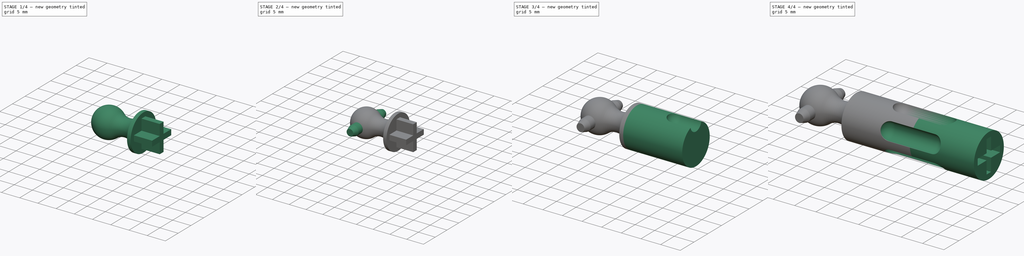
[diagram: build sequence overview — one tinted view per stage of 4, left to right]
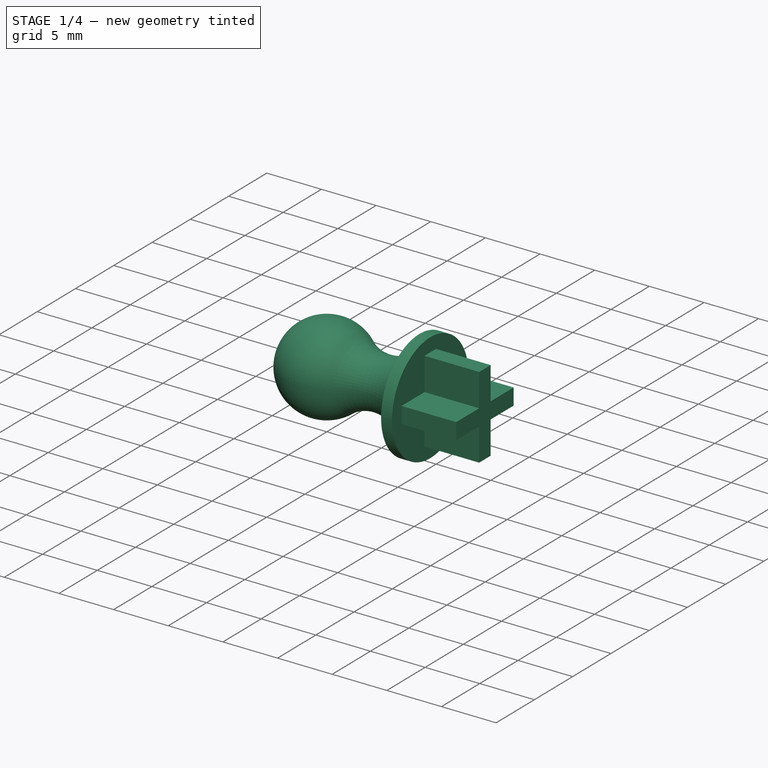
[diagram: stage 1 of 4 — iso view after this stage's code; geometry added in this stage tinted green]
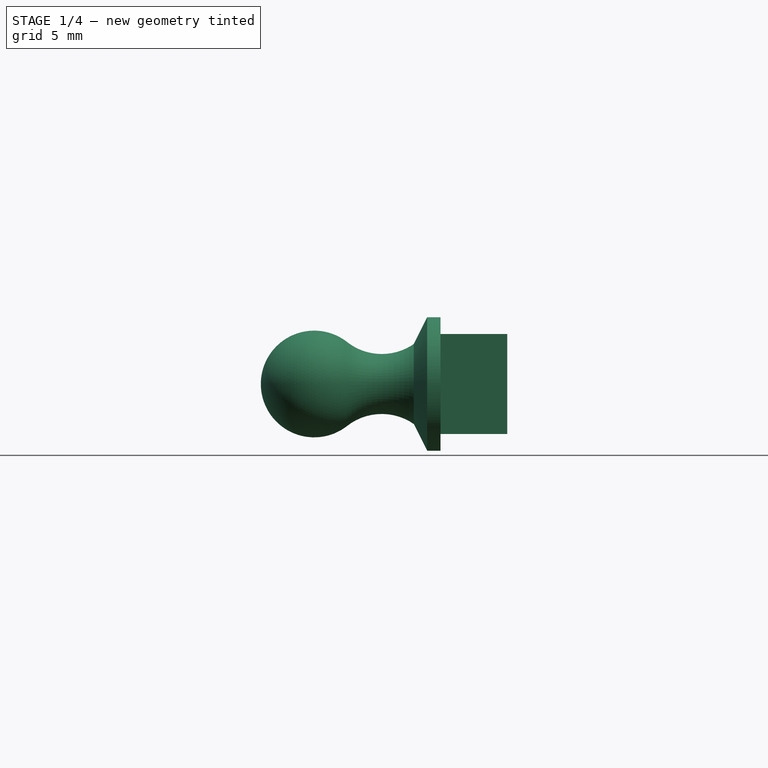
[diagram: stage 1 of 4 — front view after this stage's code; geometry added in this stage tinted green]
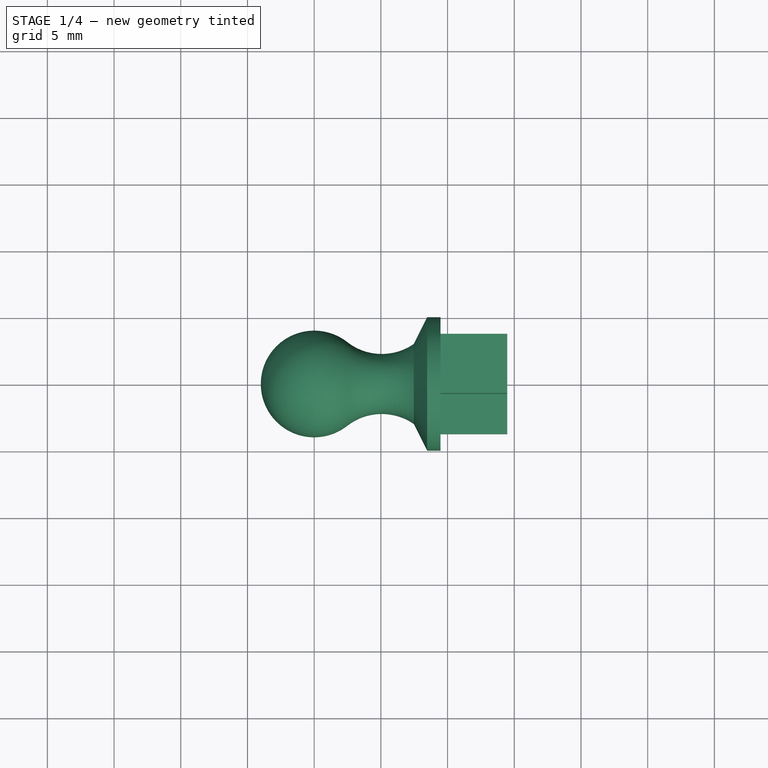
[diagram: stage 1 of 4 — top view after this stage's code; geometry added in this stage tinted green]
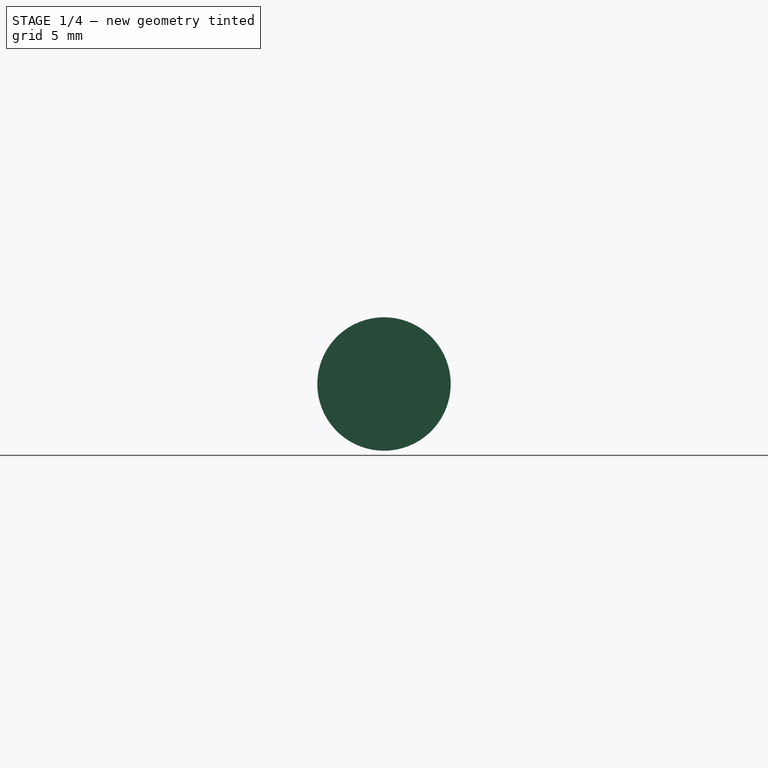
[diagram: stage 1 of 4 — right view after this stage's code; geometry added in this stage tinted green]
FCSTD DOCUMENT  (FreeCAD 2023.131R26244 +5365 (Git))
Label: tpu_drive_shaft
License: All rights reserved
LicenseURL: http://en.wikipedia.org/wiki/All_rights_reserved
objects: Sketcher::SketchObject×7, PartDesign::Pad×4, Part::SubShapeBinder×3, PartDesign::Plane×3, PartDesign::SubShapeBinder×2, PartDesign::Mirrored×2, PartDesign::Body×2, App::Link×1, PartDesign::Revolution×1, PartDesign::Groove×1, PartDesign::PolarPattern×1, PartDesign::Chamfer×1
note: 54 computed .brp shape members not serialized (recipe doc carries the construction recipe); baked Part::Feature solids carry a one-line shape summary decoded from their .brp
EXTERNAL_REF file=drive_components.FCStd obj=Body007

FEATURE [App::Link] Link  label="original_ref"
  AutoLinkLabel = true
  AutoPlacement = true
  LinkedObject = -> <external drive_components.FCStd>#Body007
  SyncGroupVisibility = false
  TreeRank = 1
  _LinkVersion = 1
FEATURE [Part::SubShapeBinder] Import  label="Import(PolarPattern)"
  BindCopyOnChange = 0
  BindMode = 0
  ClaimChildren = false
  Context = -> Body [Import.]
  EdgeTolerance = 1e-06
  FillStyle = 0
  FixShape = 1
  Fuse = false
  InvalidShape = false
  MakeFace = false
  MergeEdges = true
  OffsetFill = false
  OffsetIntersection = false
  OffsetJoinType = 0
  OffsetOpenResult = false
  Outline = false
  PartialLoad = false
  Relative = true
  SplitEdges = false
  Support = -> [Link[PolarPattern.]]
  TightBound = false
  TreeRank = 13
  ValidateShape = false
  _Version = 8
FEATURE [Sketcher::SketchObject] Sketch
  ArcFitTolerance = 1e-06
  AttachmentSupport = -> [XZ_Plane]
  ExternalBSplineMaxDegree = 5
  ExternalBSplineTolerance = 0.0001
  ExternalGeometry = -> [Import]
  FixShape = 1
  FullyConstrained = true
  InternalTolerance = 1e-06
  InvalidShape = false
  MakeInternals = false
  MapMode = 5
  Placement = pos=(0,0,0) rot=(1,0,0;1.5708rad)
  Support = -> [XZ_Plane]
  TreeRank = 12
  ValidateShape = false
  sketch-geometry (6):
    g0: ArcOfCircle CenterX=0 CenterY=0 CenterZ=0 NormalX=0 NormalY=0 NormalZ=1 AngleXU=0 Radius=4 StartAngle=0.905859 EndAngle=3.14159
    g1: ArcOfCircle CenterX=5.06827 CenterY=6.46425 CenterZ=0 NormalX=0 NormalY=0 NormalZ=1 AngleXU=0 Radius=4.21425 StartAngle=4.04745 EndAngle=5.31821
    g2: LineSegment StartX=7.46804 StartY=3 StartZ=0 EndX=8.46804 EndY=5 EndZ=0
    g3: LineSegment StartX=9.46804 StartY=0 StartZ=0 EndX=-4 EndY=0 EndZ=0
    g4: LineSegment StartX=8.46804 StartY=5 StartZ=0 EndX=9.46804 EndY=5 EndZ=0
    g5: LineSegment StartX=9.46804 StartY=5 StartZ=0 EndX=9.46804 EndY=0 EndZ=0
  constraints (18):
    c: Coincident(g0,g-1)
    c: PointOnObject(g0,g-1)
    c: Tangent(g1,g0) = 1.5708
    c: Equal(g0,g-3)
    c: Equal(g-4,g1)
    c: Vertical(g-4,g0)
    c: PointOnObject(g3,g-1)
    c: Coincident(g3,g0)
    c: Vertical(g-5,g1)
    c: Coincident(g2,g1)
    c: DistanceY(g3,g2) = 5
    c: Coincident(g4,g2)
    c: Horizontal(g4)
    c: Coincident(g5,g4)
    c: Coincident(g5,g3)
    c: Vertical(g5)
    c: DistanceX(g4,g4) = 1
    c: DistanceX(g1,g4) = 2
FEATURE [PartDesign::Revolution] Revolution
  AddSubType = 0
  Angle = 360
  Axis = (1,0,0)
  Base = (0,0,0)
  ClaimChildren = false
  Fit = 0
  FitJoin = 0
  FixShape = 1
  InnerFit = 0
  InnerFitJoin = 0
  InvalidShape = false
  Linearize = true
  NewSolid = false
  Profile = -> Sketch
  ReferenceAxis = -> Sketch [H_Axis]
  Refine = true
  Suppress = false
  TreeRank = 14
  ValidateShape = false
  _ProfileBasedVersion = 1
FEATURE [Sketcher::SketchObject] Sketch001
  ArcFitTolerance = 1e-06
  AttachmentSupport = -> [Revolution]
  ExternalBSplineMaxDegree = 5
  ExternalBSplineTolerance = 0.0001
  FixShape = 1
  FullyConstrained = true
  InternalTolerance = 1e-06
  InvalidShape = false
  MakeInternals = false
  MapMode = 5
  Placement = pos=(9.46804,0,0) rot=(0.57735,0.57735,0.57735;2.0944rad)
  Support = -> [Revolution]
  TreeRank = 15
  ValidateShape = false
  sketch-geometry (12):
    g0: LineSegment StartX=-0.75 StartY=0.75 StartZ=0 EndX=-0.75 EndY=3.75 EndZ=0
    g1: LineSegment StartX=-0.75 StartY=3.75 StartZ=0 EndX=0.75 EndY=3.75 EndZ=0
    g2: LineSegment StartX=0.75 StartY=3.75 StartZ=0 EndX=0.75 EndY=0.75 EndZ=0
    g3: LineSegment StartX=-0.75 StartY=0.75 StartZ=0 EndX=-3.75 EndY=0.75 EndZ=0
    g4: LineSegment StartX=-3.75 StartY=0.75 StartZ=0 EndX=-3.75 EndY=-0.75 EndZ=0
    g5: LineSegment StartX=-3.75 StartY=-0.75 StartZ=0 EndX=-0.75 EndY=-0.75 EndZ=0
    g6: LineSegment StartX=-0.75 StartY=-0.75 StartZ=0 EndX=-0.75 EndY=-3.75 EndZ=0
    g7: LineSegment StartX=-0.75 StartY=-3.75 StartZ=0 EndX=0.75 EndY=-3.75 EndZ=0
    g8: LineSegment StartX=0.75 StartY=-3.75 StartZ=0 EndX=0.75 EndY=-0.75 EndZ=0
    g9: LineSegment StartX=0.75 StartY=-0.75 StartZ=0 EndX=3.75 EndY=-0.75 EndZ=0
    g10: LineSegment StartX=3.75 StartY=-0.75 StartZ=0 EndX=3.75 EndY=0.75 EndZ=0
    g11: LineSegment StartX=3.75 StartY=0.75 StartZ=0 EndX=0.75 EndY=0.75 EndZ=0
  constraints (35):
    c: Vertical(g0)
    c: Coincident(g1,g0)
    c: Horizontal(g1)
    c: Coincident(g2,g1)
    c: Vertical(g2)
    c: Coincident(g3,g0)
    c: Horizontal(g3)
    c: Coincident(g4,g3)
    c: Vertical(g4)
    c: Coincident(g5,g4)
    c: Horizontal(g5)
    c: Coincident(g6,g5)
    c: Vertical(g6)
    c: Coincident(g7,g6)
    c: Horizontal(g7)
    c: Coincident(g8,g7)
    c: Coincident(g9,g8)
    c: Coincident(g10,g9)
    c: Coincident(g11,g10)
    c: Coincident(g11,g2)
    c: Equal(g1,g7)
    c: Equal(g7,g4)
    c: Equal(g4,g10)
    c: Vertical(g10)
    c: Vertical(g8)
    c: Horizontal(g9)
    c: Horizontal(g11)
    c: Equal(g3,g0)
    c: Equal(g0,g2)
    c: Equal(g2,g11)
    c: Equal(g11,g9)
    c: Equal(g9,g8)
    c: Symmetric(g2,g5,g-1)
    c: DistanceX(g1,g1) = 1.5
    c: DistanceY(g2,g2) = 3
FEATURE [PartDesign::Pad] Pad
  AddSubType = 0
  AlongSketchNormal = false
  AutoTaperInnerAngle = true
  BaseFeature = -> Revolution
  CheckUpToFaceLimits = true
  ClaimChildren = false
  Direction = (1,0,0)
  Fit = 0
  FitJoin = 0
  FixShape = 1
  InnerFit = 0
  InnerFitJoin = 0
  InvalidShape = false
  Length = 5
  Length2 = 100
  Linearize = true
  NewSolid = false
  Profile = -> Sketch001
  Refine = true
  Suppress = false
  TaperInnerAngle = 0
  TaperInnerAngleRev = 0
  TreeRank = 16
  Type = 0
  ValidateShape = false
  _ProfileBasedVersion = 1
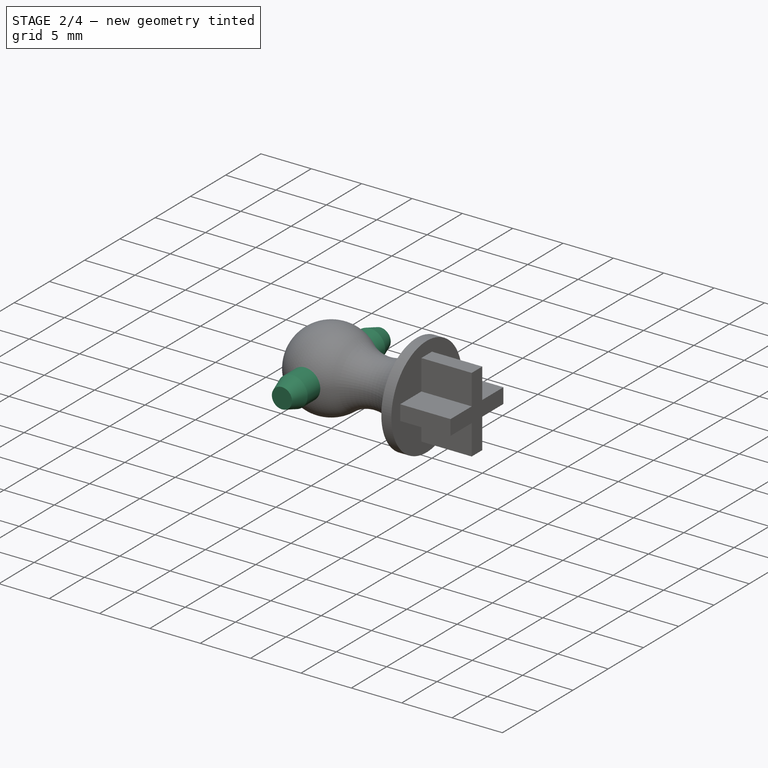
[diagram: stage 2 of 4 — iso view after this stage's code; geometry added in this stage tinted green]
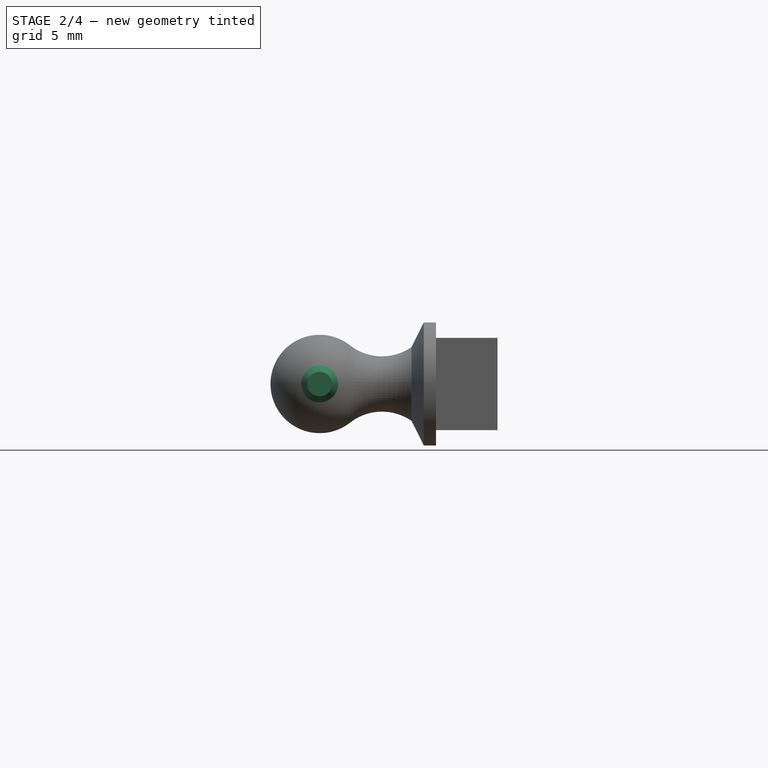
[diagram: stage 2 of 4 — front view after this stage's code; geometry added in this stage tinted green]
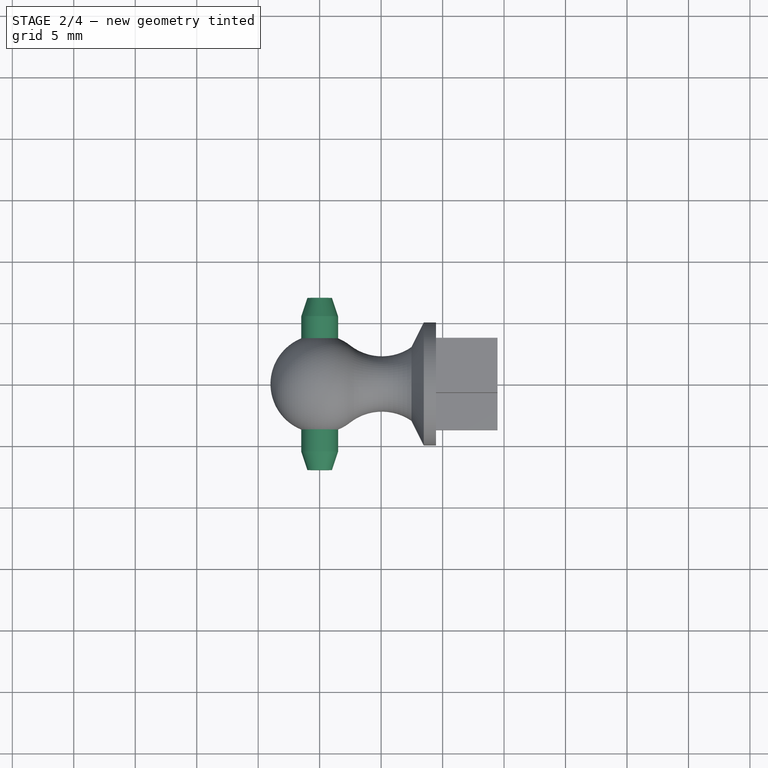
[diagram: stage 2 of 4 — top view after this stage's code; geometry added in this stage tinted green]
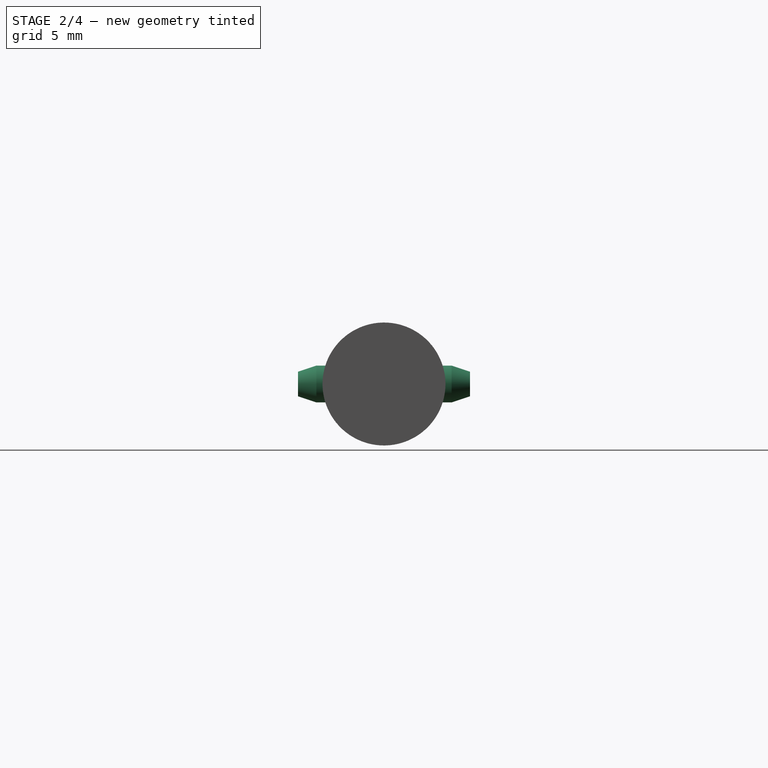
[diagram: stage 2 of 4 — right view after this stage's code; geometry added in this stage tinted green]
FEATURE [Sketcher::SketchObject] Sketch002
  ArcFitTolerance = 1e-06
  AttachmentSupport = -> [XZ_Plane]
  ExternalBSplineMaxDegree = 5
  ExternalBSplineTolerance = 0.0001
  ExternalGeometry = -> [Import]
  FixShape = 1
  FullyConstrained = true
  InternalTolerance = 1e-06
  InvalidShape = false
  MakeInternals = false
  MapMode = 5
  Placement = pos=(0,0,0) rot=(1,0,0;1.5708rad)
  Support = -> [XZ_Plane]
  TreeRank = 17
  ValidateShape = false
  sketch-geometry (1):
    g0: Circle CenterX=0 CenterY=0 CenterZ=0 NormalX=0 NormalY=0 NormalZ=1 AngleXU=0 Radius=1.5
  constraints (2):
    c: Coincident(g0,g-1)
    c: Equal(g0,g-3)
FEATURE [PartDesign::SubShapeBinder] Binder  label="Binder(PolarPattern)"
  BindCopyOnChange = 0
  BindMode = 0
  ClaimChildren = false
  Context = -> Body [Binder.]
  EdgeTolerance = 1e-06
  FillStyle = 0
  FixShape = 1
  Fuse = false
  InvalidShape = false
  MakeFace = true
  MergeEdges = true
  OffsetFill = false
  OffsetIntersection = false
  OffsetJoinType = 0
  OffsetOpenResult = false
  Outline = false
  PartialLoad = false
  Relative = true
  SplitEdges = false
  Support = -> [Link[PolarPattern.Face7]]
  TightBound = false
  TreeRank = 18
  ValidateShape = false
  _Version = 8
FEATURE [PartDesign::Plane] DatumPlane
  AttachmentSupport = -> [Binder]
  FixShape = 1
  InvalidShape = false
  Length = 18.468
  MapMode = 5
  MinimumLength = 10
  MinimumWidth = 10
  Placement = pos=(0,-7,-1.5e-15) rot=(1,0,0;1.5708rad)
  ResizeMode = 0
  Support = -> [Binder]
  TreeRank = 19
  ValidateShape = false
  Width = 20.4901
FEATURE [PartDesign::Pad] Pad001
  AddSubType = 0
  AlongSketchNormal = false
  AutoTaperInnerAngle = true
  BaseFeature = -> Pad
  CheckUpToFaceLimits = true
  ClaimChildren = false
  Direction = (0,-1,2e-16)
  Fit = 0
  FitJoin = 0
  FixShape = 1
  InnerFit = 0
  InnerFitJoin = 0
  InvalidShape = false
  Length = 10
  Length2 = 100
  Linearize = true
  NewSolid = false
  Profile = -> Sketch002
  Refine = true
  Suppress = false
  TaperInnerAngle = 0
  TaperInnerAngleRev = 0
  TreeRank = 20
  Type = 3
  UpToFace = -> DatumPlane
  ValidateShape = false
  _ProfileBasedVersion = 1
FEATURE [PartDesign::Mirrored] Mirrored
  AddSubType = 0
  BaseFeature = -> Pad001
  CopyShape = false
  FixShape = 1
  InvalidShape = false
  MirrorPlane = -> XZ_Plane
  NewSolid = false
  OriginalSubs = -> [Pad001]
  Originals = -> [Pad001]
  ParallelTransform = true
  Refine = true
  SubTransform = true
  Suppress = false
  TreeRank = 21
  ValidateShape = false
  _Version = 3
FEATURE [PartDesign::Body] Body001  label="torque_damper"
  AutoGroupSolids = false
  ClaimAllChildren = false
  ExportMode = 0
  FixShape = 1
  Group = -> [Import001,Sketch003,Sketch004,Import002,DatumPlane001,DatumPlane002,Pad002,Import003,Sketch005,Pad003,Sketch006,Groove,PolarPattern,Mirrored001]
  InvalidShape = false
  Origin = -> Origin001
  Tip = -> Mirrored001
  TreeRank = 31
  ValidateShape = false
  _ExportChildren = -> [Import001,Sketch004,Import002,DatumPlane001,DatumPlane002,Pad002,Import003,Pad003,Groove,PolarPattern,Mirrored001]
  _GroupVersion = 1
FEATURE [PartDesign::Chamfer] Chamfer
  AddSubType = 0
  Angle = 45
  Base = -> Mirrored [Edge11,Edge9]
  BaseFeature = -> Mirrored
  ChamferType = 1
  FixShape = 1
  FlipDirection = false
  InvalidShape = false
  NewSolid = false
  Refine = true
  Size = 1.5
  Size2 = 0.5
  SupportTransform = false
  Suppress = false
  TreeRank = 51
  ValidateShape = false
FEATURE [PartDesign::Body] Body  label="shaft_end"
  AutoGroupSolids = false
  ClaimAllChildren = false
  ExportMode = 0
  FixShape = 1
  Group = -> [Sketch,Import,Revolution,Sketch001,Pad,Sketch002,Binder,DatumPlane,Pad001,Mirrored,Chamfer]
  InvalidShape = false
  Origin = -> Origin
  Tip = -> Chamfer
  TreeRank = 11
  ValidateShape = false
  _ExportChildren = -> [Import,Revolution,Pad,Binder,DatumPlane,Pad001,Mirrored,Chamfer]
  _GroupVersion = 1
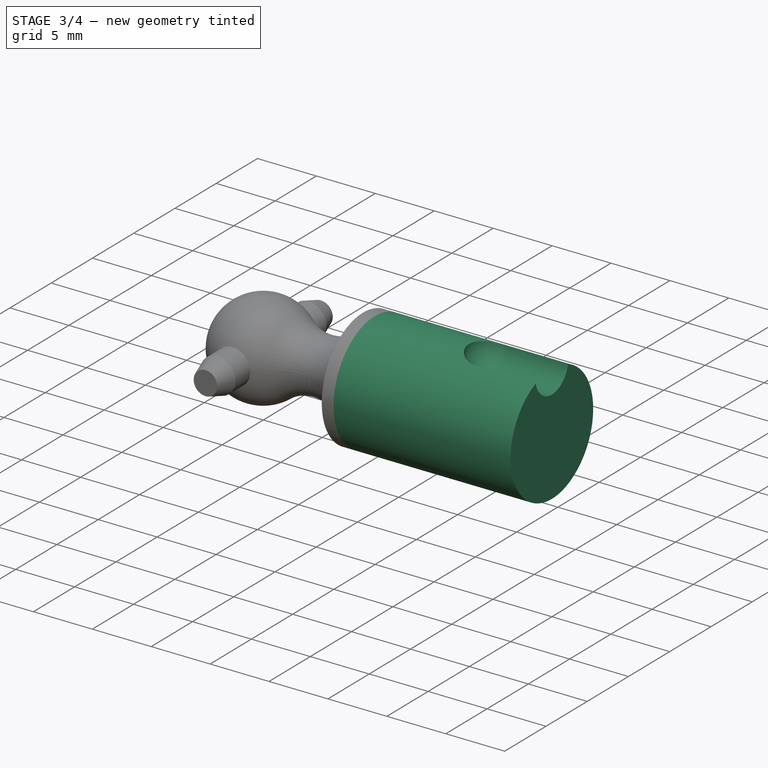
[diagram: stage 3 of 4 — iso view after this stage's code; geometry added in this stage tinted green]
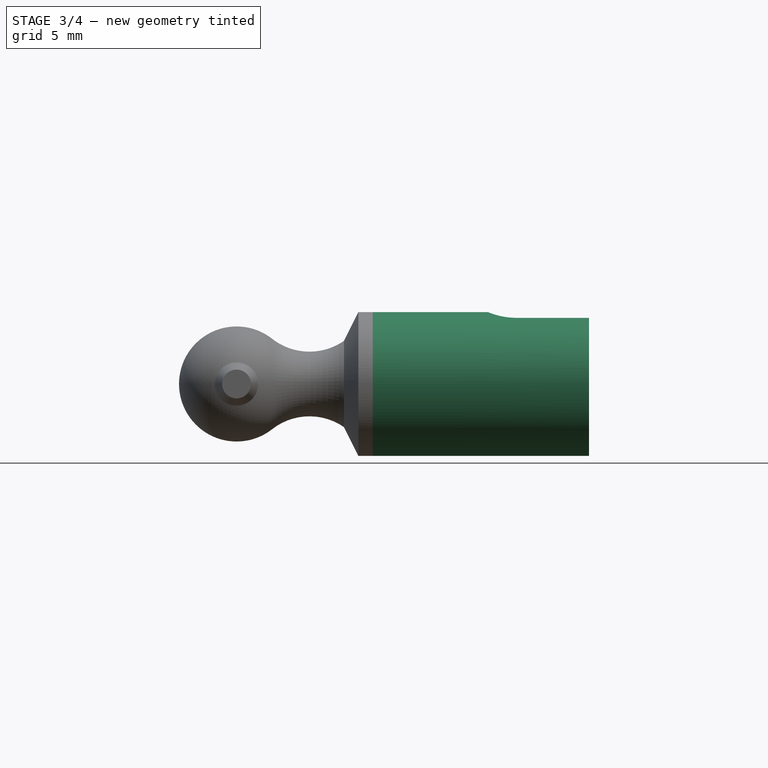
[diagram: stage 3 of 4 — front view after this stage's code; geometry added in this stage tinted green]
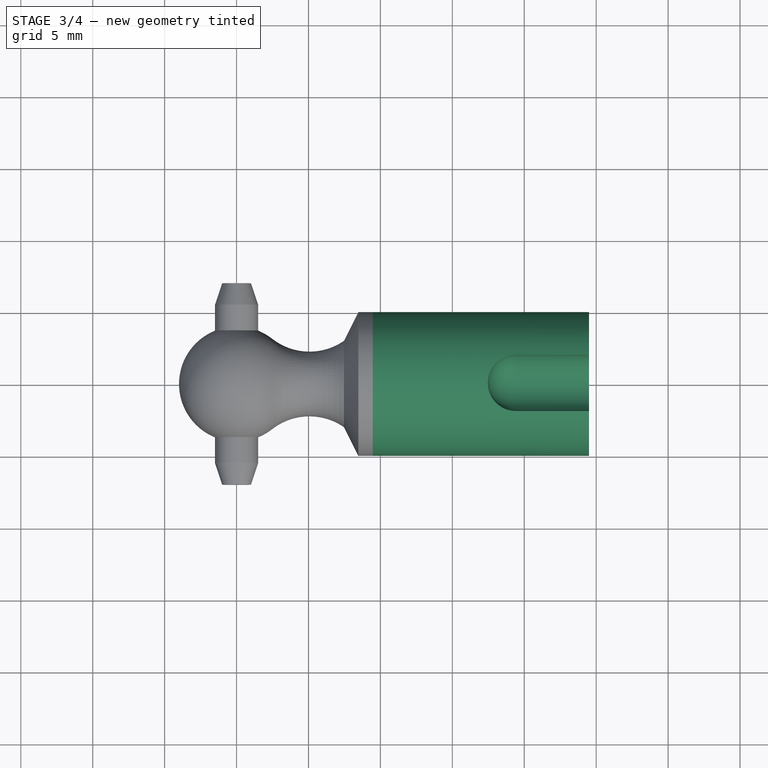
[diagram: stage 3 of 4 — top view after this stage's code; geometry added in this stage tinted green]
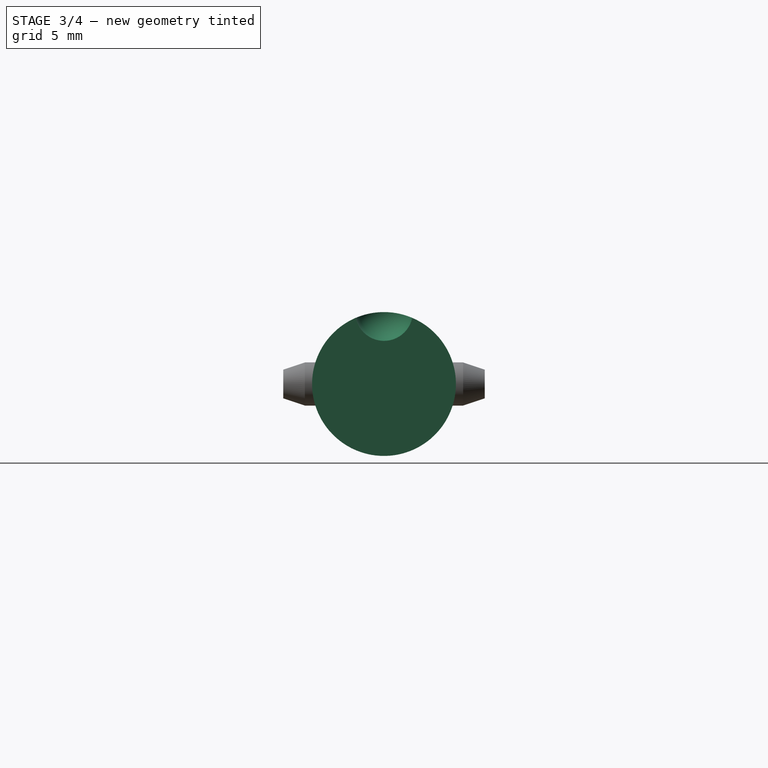
[diagram: stage 3 of 4 — right view after this stage's code; geometry added in this stage tinted green]
FEATURE [Part::SubShapeBinder] Import001  label="Import001(Mirrored)"
  BindCopyOnChange = 0
  BindMode = 0
  ClaimChildren = false
  Context = -> Body001 [Import001.]
  EdgeTolerance = 1e-06
  FillStyle = 0
  FixShape = 1
  Fuse = false
  InvalidShape = false
  MakeFace = false
  MergeEdges = true
  OffsetFill = false
  OffsetIntersection = false
  OffsetJoinType = 0
  OffsetOpenResult = false
  Outline = false
  PartialLoad = false
  Relative = true
  SplitEdges = false
  Support = -> [Body[Mirrored.]]
  TightBound = false
  TreeRank = 32
  ValidateShape = false
  _Version = 8
FEATURE [Sketcher::SketchObject] Sketch003
  ArcFitTolerance = 1e-06
  AttachmentSupport = -> [Import001]
  ExternalBSplineMaxDegree = 5
  ExternalBSplineTolerance = 0.0001
  ExternalGeometry = -> [Import001]
  FixShape = 1
  FullyConstrained = true
  InternalTolerance = 1e-06
  InvalidShape = false
  MakeInternals = false
  MapMode = 5
  Placement = pos=(9.46804,0,0) rot=(0.57735,0.57735,0.57735;2.0944rad)
  Support = -> [Import001]
  TreeRank = 33
  ValidateShape = false
  sketch-geometry (1):
    g0: Circle CenterX=0 CenterY=0 CenterZ=0 NormalX=0 NormalY=0 NormalZ=1 AngleXU=0 Radius=5
  constraints (2):
    c: Coincident(g0,g-3)
    c: Diameter(g0) = 10
FEATURE [Part::SubShapeBinder] Import002  label="Import002(PolarPattern)"
  BindCopyOnChange = 0
  BindMode = 0
  ClaimChildren = false
  Context = -> Body001 [Import002.]
  EdgeTolerance = 1e-06
  FillStyle = 0
  FixShape = 1
  Fuse = false
  InvalidShape = false
  MakeFace = false
  MergeEdges = true
  OffsetFill = false
  OffsetIntersection = false
  OffsetJoinType = 0
  OffsetOpenResult = false
  Outline = false
  PartialLoad = false
  Relative = true
  SplitEdges = false
  Support = -> [Link[PolarPattern.]]
  TightBound = false
  TreeRank = 35
  ValidateShape = false
  _Version = 8
FEATURE [Sketcher::SketchObject] Sketch004
  ArcFitTolerance = 1e-06
  AttachmentSupport = -> [XZ_Plane001]
  ExternalBSplineMaxDegree = 5
  ExternalBSplineTolerance = 0.0001
  ExternalGeometry = -> [Import002]
  FixShape = 1
  FullyConstrained = true
  InternalTolerance = 1e-06
  InvalidShape = false
  MakeInternals = false
  MapMode = 5
  Placement = pos=(0,0,0) rot=(1,0,0;1.5708rad)
  Support = -> [XZ_Plane001]
  TreeRank = 34
  ValidateShape = false
  sketch-geometry (3):
    g0: LineSegment StartX=24.5 StartY=12.0237 StartZ=0 EndX=24.5 EndY=15.0118 EndZ=0
    g1: LineSegment StartX=7.46804 StartY=15.0118 StartZ=0 EndX=41.532 EndY=15.0118 EndZ=0
    g2: LineSegment StartX=41.532 StartY=15.0118 StartZ=0 EndX=42.532 EndY=15.0118 EndZ=0
  constraints (9):
    c: Vertical(g0)
    c: PointOnObject(g1,g-3)
    c: Horizontal(g1)
    c: Symmetric(g1,g1,g0)
    c: Coincident(g2,g1)
    c: Horizontal(g2)
    c: DistanceX(g2,g2) = 1  'shaft_tolerance'
    c: Symmetric(g-4,g-4,g2)
    c: Horizontal(g-3,g0)
FEATURE [PartDesign::Plane] DatumPlane001
  AttachmentSupport = -> [Sketch004,YZ_Plane001]
  FixShape = 1
  InvalidShape = false
  Length = 10
  MapMode = 6
  MinimumLength = 10
  MinimumWidth = 10
  Placement = pos=(24.5,2.7e-15,12.0237) rot=(0,1,0;1.5708rad)
  ResizeMode = 0
  Support = -> [Sketch004,YZ_Plane001]
  TreeRank = 36
  ValidateShape = false
  Width = 14
FEATURE [PartDesign::SubShapeBinder] Import003  label="Import003(Mirrored)"
  BindCopyOnChange = 0
  BindMode = 0
  ClaimChildren = false
  Context = -> Body001 [Import003.]
  EdgeTolerance = 1e-06
  FillStyle = 0
  FixShape = 1
  Fuse = false
  InvalidShape = false
  MakeFace = false
  MergeEdges = true
  OffsetFill = false
  OffsetIntersection = false
  OffsetJoinType = 0
  OffsetOpenResult = false
  Outline = false
  PartialLoad = false
  Relative = true
  SplitEdges = false
  Support = -> [Body[Mirrored.Face22]]
  TightBound = false
  TreeRank = 38
  ValidateShape = false
  _Version = 8
FEATURE [PartDesign::Plane] DatumPlane002
  AttachmentOffset = pos=(0,0,1) rot=(0,0,1;0rad)
  AttachmentSupport = -> [Mirrored]
  FixShape = 1
  InvalidShape = false
  Length = 10
  MapMode = 5
  MinimumLength = 10
  MinimumWidth = 10
  Placement = pos=(15.468,0,0) rot=(0.57735,0.57735,0.57735;2.0944rad)
  ResizeMode = 0
  Support = -> [Mirrored]
  TreeRank = 46
  ValidateShape = false
  Width = 17.0152
FEATURE [PartDesign::Pad] Pad002
  AddSubType = 0
  AlongSketchNormal = false
  AutoTaperInnerAngle = true
  CheckUpToFaceLimits = true
  ClaimChildren = false
  Direction = (1,0,0)
  Fit = 0
  FitJoin = 0
  FixShape = 1
  InnerFit = 0
  InnerFitJoin = 0
  InvalidShape = false
  Length = 10
  Length2 = 100
  Linearize = true
  NewSolid = false
  Profile = -> Sketch003
  Refine = true
  Suppress = false
  TaperInnerAngle = 0
  TaperInnerAngleRev = 0
  TreeRank = 37
  Type = 3
  UpToFace = -> DatumPlane002
  ValidateShape = false
  _ProfileBasedVersion = 1
FEATURE [Sketcher::SketchObject] Sketch005
  ArcFitTolerance = 1e-06
  AttachmentSupport = -> [Pad002]
  ExternalBSplineMaxDegree = 5
  ExternalBSplineTolerance = 0.0001
  ExternalGeometry = -> [Pad002]
  FixShape = 1
  FullyConstrained = true
  InternalTolerance = 1e-06
  InvalidShape = false
  MakeInternals = false
  MapMode = 5
  Placement = pos=(15.468,0,0) rot=(0.57735,0.57735,0.57735;2.0944rad)
  Support = -> [Pad002]
  TreeRank = 39
  ValidateShape = false
FEATURE [PartDesign::Pad] Pad003
  AddSubType = 0
  AlongSketchNormal = false
  AutoTaperInnerAngle = true
  BaseFeature = -> Pad002
  CheckUpToFaceLimits = true
  ClaimChildren = false
  Direction = (1,0,0)
  Fit = 0
  FitJoin = 0
  FixShape = 1
  InnerFit = 0
  InnerFitJoin = 0
  InvalidShape = false
  Length = 10
  Length2 = 100
  Linearize = true
  NewSolid = false
  Profile = -> Sketch005
  Refine = true
  Suppress = false
  TaperInnerAngle = 0
  TaperInnerAngleRev = 0
  TreeRank = 40
  Type = 3
  UpToFace = -> DatumPlane001
  ValidateShape = false
  _ProfileBasedVersion = 1
FEATURE [Sketcher::SketchObject] Sketch006
  ArcFitTolerance = 1e-06
  AttachmentSupport = -> [XZ_Plane001]
  ExternalBSplineMaxDegree = 5
  ExternalBSplineTolerance = 0.0001
  ExternalGeometry = -> [Pad003]
  FixShape = 1
  FullyConstrained = true
  InternalTolerance = 1e-06
  InvalidShape = false
  MakeInternals = false
  MapMode = 5
  Placement = pos=(0,0,0) rot=(1,0,0;1.5708rad)
  Support = -> [XZ_Plane001]
  TreeRank = 47
  ValidateShape = false
  sketch-geometry (4):
    g0: LineSegment StartX=17.468 StartY=5 StartZ=0 EndX=24.5 EndY=5 EndZ=0
    g1: ArcOfCircle CenterX=19.468 CenterY=5 CenterZ=0 NormalX=0 NormalY=0 NormalZ=1 AngleXU=0 Radius=2 StartAngle=3.14159 EndAngle=4.71239
    g2: LineSegment StartX=19.468 StartY=3 StartZ=0 EndX=24.5 EndY=3 EndZ=0
    g3: LineSegment StartX=24.5 StartY=3 StartZ=0 EndX=24.5 EndY=5 EndZ=0
  constraints (11):
    c: Coincident(g0,g-3)
    c: Horizontal(g0)
    c: DistanceX(g-4,g0) = 2
    c: PointOnObject(g1,g0)
    c: Coincident(g1,g0)
    c: PointOnObject(g2,g-3)
    c: Horizontal(g2)
    c: Coincident(g3,g2)
    c: Coincident(g3,g0)
    c: Tangent(g2,g1) = -1.5708
    c: DistanceY(g3,g3) = 2
FEATURE [PartDesign::Groove] Groove
  AddSubType = 1
  Angle = 360
  Axis = (1,0,0)
  Base = (17.468,1.1e-15,5)
  BaseFeature = -> Pad003
  ClaimChildren = false
  Fit = 0
  FitJoin = 0
  FixShape = 1
  InnerFit = 0
  InnerFitJoin = 0
  InvalidShape = false
  Linearize = true
  NewSolid = false
  Profile = -> Sketch006
  ReferenceAxis = -> Sketch006 [Edge1]
  Refine = true
  Suppress = false
  TreeRank = 48
  ValidateShape = false
  _ProfileBasedVersion = 1
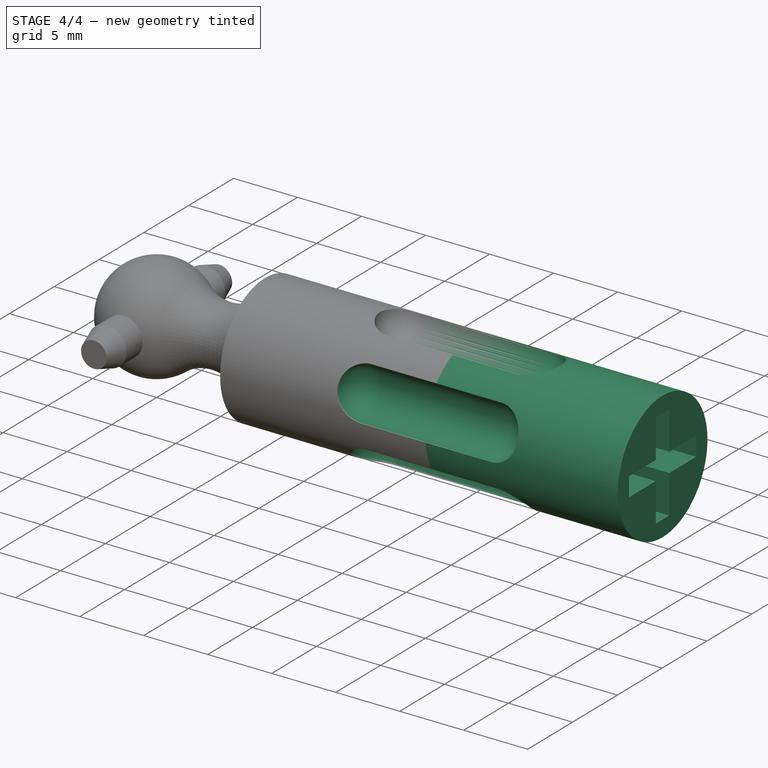
[diagram: stage 4 of 4 — iso view after this stage's code; geometry added in this stage tinted green]
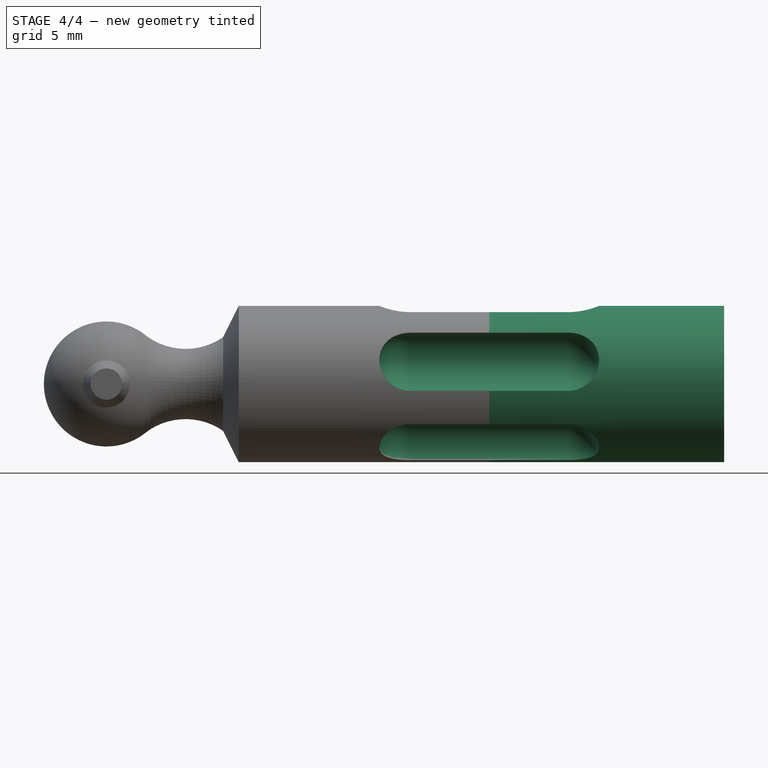
[diagram: stage 4 of 4 — front view after this stage's code; geometry added in this stage tinted green]
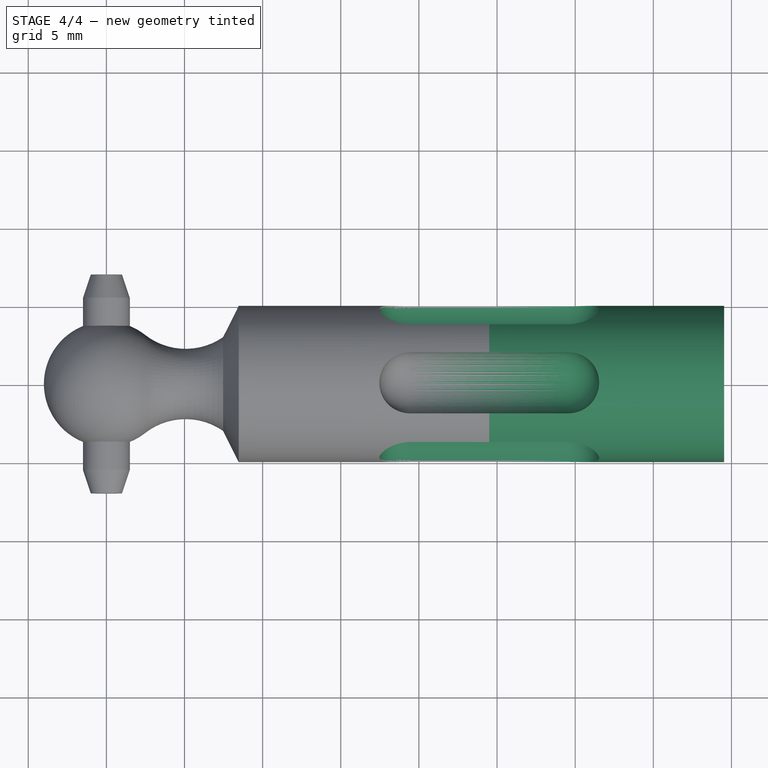
[diagram: stage 4 of 4 — top view after this stage's code; geometry added in this stage tinted green]
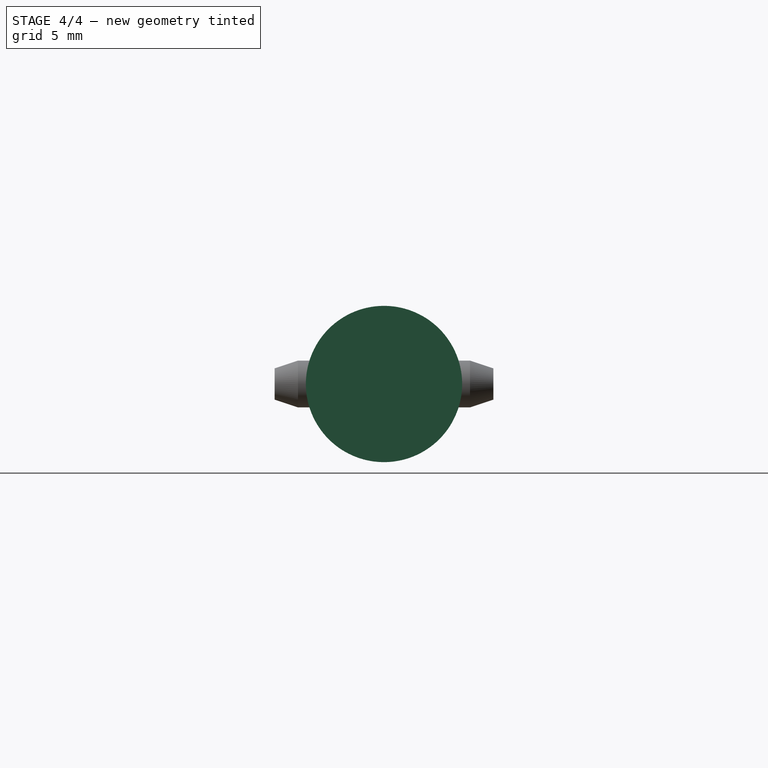
[diagram: stage 4 of 4 — right view after this stage's code; geometry added in this stage tinted green]
FEATURE [PartDesign::PolarPattern] PolarPattern
  AddSubType = 0
  Angle = 360
  Axis = -> X_Axis001
  BaseFeature = -> Groove
  CopyShape = false
  FixShape = 1
  InvalidShape = false
  NewSolid = false
  Occurrences = 5
  OriginalSubs = -> [Groove]
  Originals = -> [Groove]
  ParallelTransform = true
  Refine = true
  SubTransform = true
  Suppress = false
  TreeRank = 49
  ValidateShape = false
  _Version = 3
FEATURE [PartDesign::Mirrored] Mirrored001
  AddSubType = 0
  BaseFeature = -> PolarPattern
  CopyShape = false
  FixShape = 1
  InvalidShape = false
  MirrorPlane = -> DatumPlane001
  NewSolid = false
  OriginalSubs = -> [PolarPattern,Groove,Pad003,Pad002]
  Originals = -> [PolarPattern,Groove,Pad003,Pad002]
  ParallelTransform = true
  Refine = true
  SubTransform = true
  Suppress = false
  TreeRank = 50
  ValidateShape = false
  _Version = 3
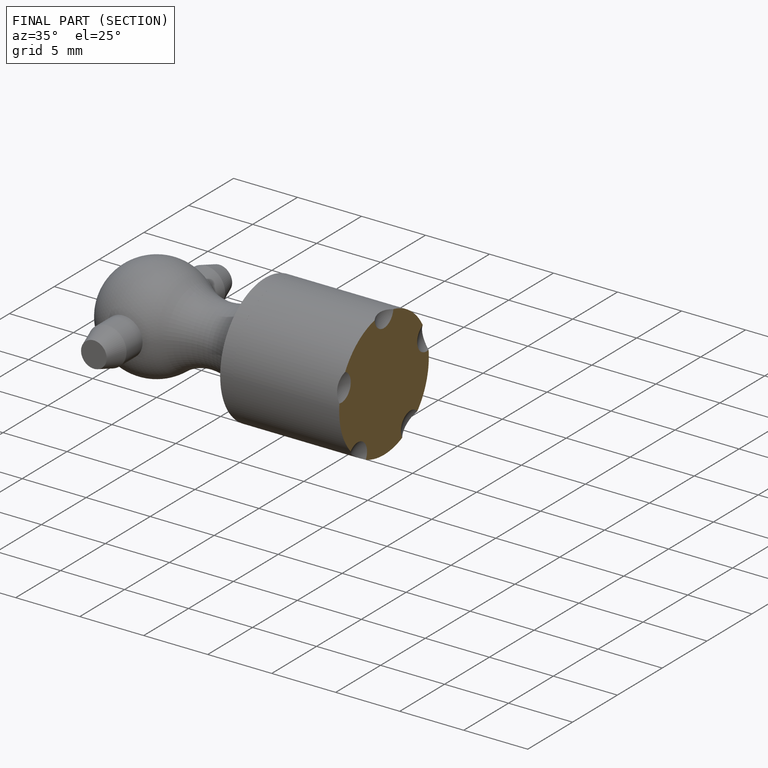
[diagram: finished part — half-section view (interior)]
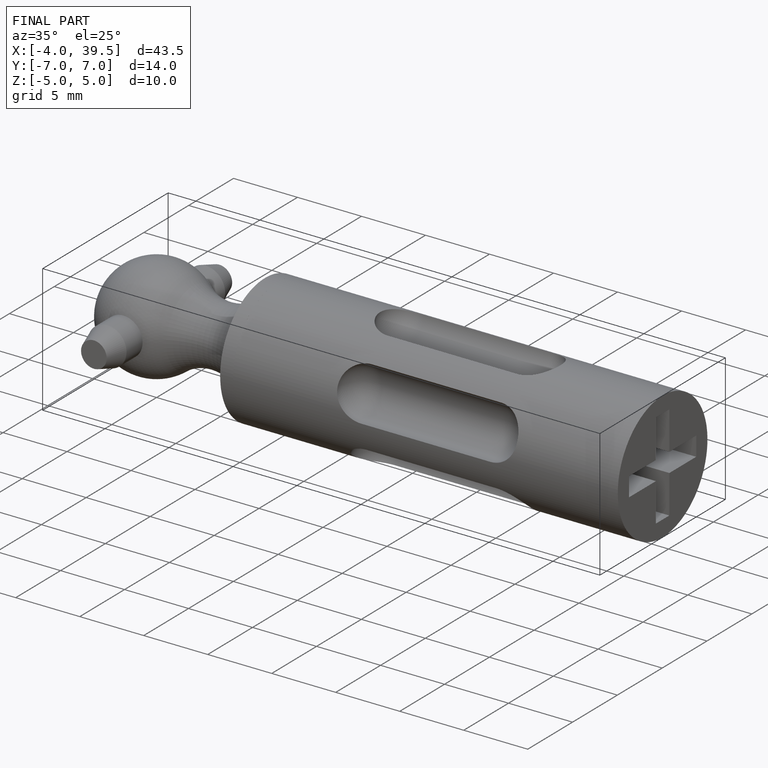
[diagram: finished part — iso view with bounding-box wireframe]
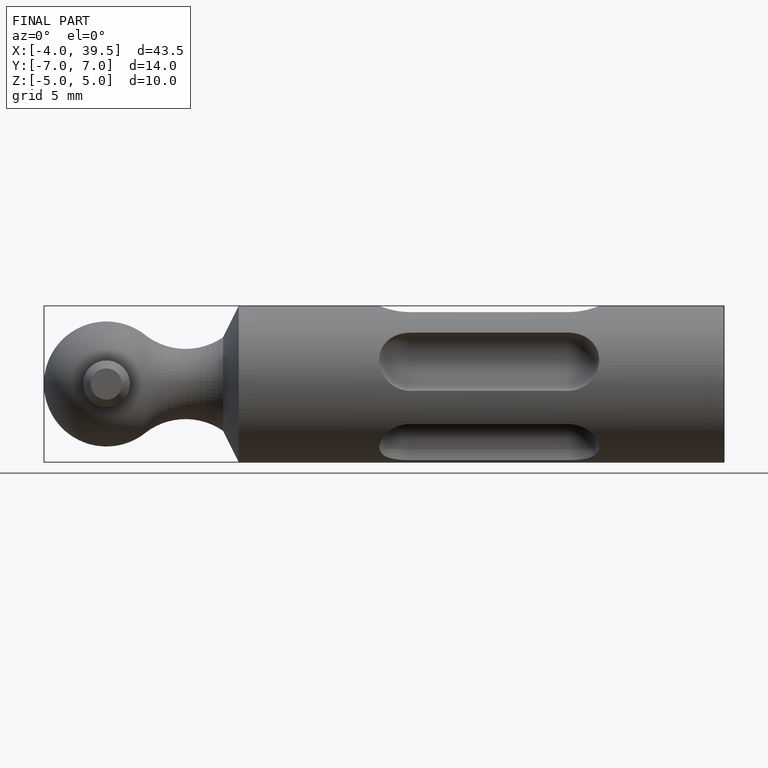
[diagram: finished part — front view with bounding-box wireframe]
